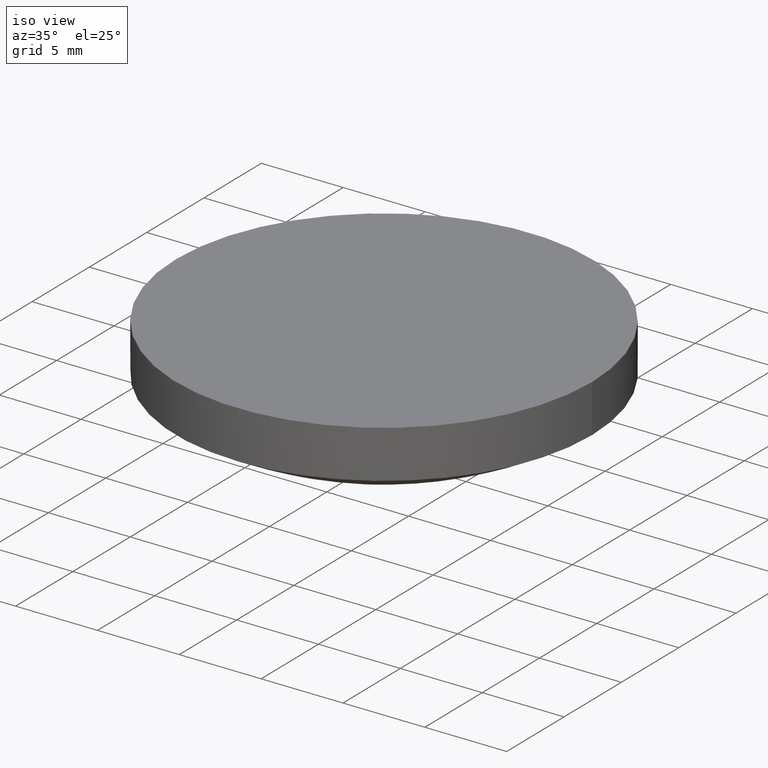
[diagram: clean part render]
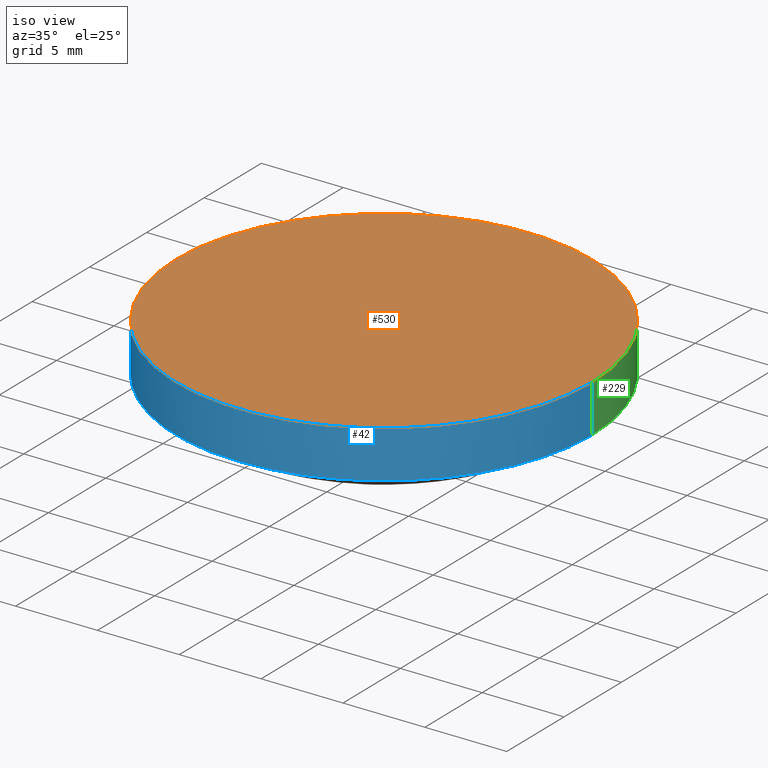
[diagram: same view with three faces highlighted in distinct colors, each labeled with its STEP entity id]
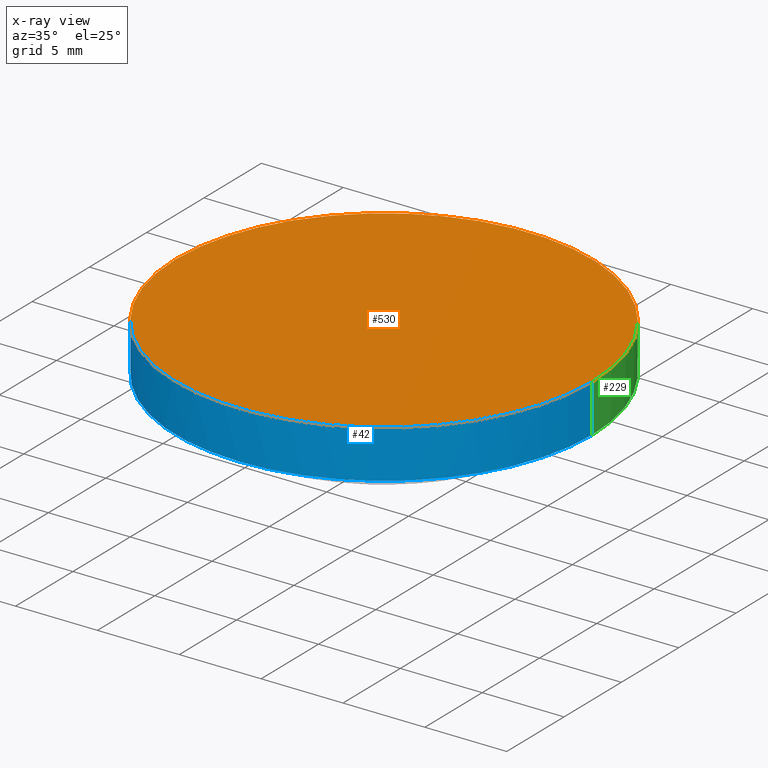
[diagram: x-ray of the same camera — body ghosted, the three highlighted faces saturated]
A machine part, iso view with three faces highlighted in distinct colors.
The next image is the same camera in x-ray (body ghosted, the three faces saturated) — at least one of them is partly hidden behind the body in this view.
Their STEP definitions:

[orange] entity #530 — the highlighted planar face has unit normal (0, 0, 1).
#2 = AXIS2_PLACEMENT_3D ( 'NONE', #307, #428, #301 ) ;
#24 = DIRECTION ( 'NONE',  ( 6.993530863780509846E-17, 4.890947394265059749E-33, -1.000000000000000000 ) ) ;
#32 = DIRECTION ( 'NONE',  ( 1.000000000000000000, 0.000000000000000000, 6.829619984160658046E-17 ) ) ;
#85 = AXIS2_PLACEMENT_3D ( 'NONE', #408, #24, #32 ) ;
#95 = DIRECTION ( 'NONE',  ( 1.000000000000000000, 0.000000000000000000, -0.000000000000000000 ) ) ;
#148 = VERTEX_POINT ( 'NONE', #156 ) ;
#156 = CARTESIAN_POINT ( 'NONE',  ( -12.69999999999999929, 6.671230152170134961E-16, 7.000000000000000000 ) ) ;
#215 = FACE_OUTER_BOUND ( 'NONE', #392, .T. ) ;
#216 = DIRECTION ( 'NONE',  ( 0.000000000000000000, 0.000000000000000000, 1.000000000000000000 ) ) ;
#218 = AXIS2_PLACEMENT_3D ( 'NONE', #261, #216, #95 ) ;
#220 = PLANE ( 'NONE',  #218 ) ;
#226 = CIRCLE ( 'NONE', #2, 12.69999999999999929 ) ;
#261 = CARTESIAN_POINT ( 'NONE',  ( 0.000000000000000000, 26.11199999999999832, 7.000000000000000000 ) ) ;
#264 = EDGE_CURVE ( 'NONE', #148, #528, #395, .T. ) ;
#301 = DIRECTION ( 'NONE',  ( 1.000000000000000000, 0.000000000000000000, 6.829619984160658046E-17 ) ) ;
#307 = CARTESIAN_POINT ( 'NONE',  ( 6.832987892309746087E-16, -8.881784197001250351E-16, 7.000000000000000888 ) ) ;
#350 = ORIENTED_EDGE ( 'NONE', *, *, #529, .F. ) ;
#391 = CARTESIAN_POINT ( 'NONE',  ( 12.69999999999999929, -8.881784197001250351E-16, 7.000000000000001776 ) ) ;
#392 = EDGE_LOOP ( 'NONE', ( #350, #431 ) ) ;
#395 = CIRCLE ( 'NONE', #85, 12.69999999999999929 ) ;
#408 = CARTESIAN_POINT ( 'NONE',  ( 6.832987892309746087E-16, -8.881784197001250351E-16, 7.000000000000000888 ) ) ;
#428 = DIRECTION ( 'NONE',  ( 6.993530863780509846E-17, 4.890947394265059749E-33, -1.000000000000000000 ) ) ;
#431 = ORIENTED_EDGE ( 'NONE', *, *, #264, .F. ) ;
#528 = VERTEX_POINT ( 'NONE', #391 ) ;
#529 = EDGE_CURVE ( 'NONE', #528, #148, #226, .T. ) ;
#530 = ADVANCED_FACE ( 'NONE', ( #215 ), #220, .T. ) ;

[blue] entity #42 — the highlighted cylindrical surface (partial cylindrical patch) has radius 12.7 mm, axis along (-0, -0, 1).
#2 = AXIS2_PLACEMENT_3D ( 'NONE', #307, #428, #301 ) ;
#12 = LINE ( 'NONE', #178, #349 ) ;
#13 = VERTEX_POINT ( 'NONE', #352 ) ;
#14 = ORIENTED_EDGE ( 'NONE', *, *, #214, .F. ) ;
#21 = VERTEX_POINT ( 'NONE', #272 ) ;
#28 = CARTESIAN_POINT ( 'NONE',  ( -1.555301434917141588E-15, -12.70000000000000462, 4.070440747888570243 ) ) ;
#42 = ADVANCED_FACE ( 'NONE', ( #358 ), #117, .T. ) ;
#94 = VERTEX_POINT ( 'NONE', #28 ) ;
#98 = ORIENTED_EDGE ( 'NONE', *, *, #484, .T. ) ;
#105 = CARTESIAN_POINT ( 'NONE',  ( 8.881784197001250351E-16, -8.881784197001250351E-16, 4.070440747888570243 ) ) ;
#117 = CYLINDRICAL_SURFACE ( 'NONE', #514, 12.69999999999999929 ) ;
#135 = CARTESIAN_POINT ( 'NONE',  ( 1.734723475976807094E-15, -1.345898117247522881E-15, 4.070440747888570243 ) ) ;
#139 = ORIENTED_EDGE ( 'NONE', *, *, #519, .F. ) ;
#140 = CARTESIAN_POINT ( 'NONE',  ( 12.70000000000000107, -8.881784197001250351E-16, 4.070440747888571131 ) ) ;
#148 = VERTEX_POINT ( 'NONE', #156 ) ;
#154 = AXIS2_PLACEMENT_3D ( 'NONE', #135, #341, #516 ) ;
#156 = CARTESIAN_POINT ( 'NONE',  ( -12.69999999999999929, 6.671230152170134961E-16, 7.000000000000000000 ) ) ;
#178 = CARTESIAN_POINT ( 'NONE',  ( -12.69999999999999751, 6.671230152170134961E-16, 4.070440747888569355 ) ) ;
#192 = DIRECTION ( 'NONE',  ( 1.000000000000000000, 0.000000000000000000, 6.829619984160658046E-17 ) ) ;
#214 = EDGE_CURVE ( 'NONE', #94, #13, #316, .T. ) ;
#226 = CIRCLE ( 'NONE', #2, 12.69999999999999929 ) ;
#245 = DIRECTION ( 'NONE',  ( -6.993530863780509846E-17, -4.890947394265059749E-33, 1.000000000000000000 ) ) ;
#272 = CARTESIAN_POINT ( 'NONE',  ( 12.70000000000000462, -8.881784197001248379E-16, 4.070440747888570243 ) ) ;
#275 = DIRECTION ( 'NONE',  ( -0.000000000000000000, -0.000000000000000000, -1.000000000000000000 ) ) ;
#285 = CARTESIAN_POINT ( 'NONE',  ( 1.734723475976807094E-15, -1.345898117247522881E-15, 4.070440747888570243 ) ) ;
#301 = DIRECTION ( 'NONE',  ( 1.000000000000000000, 0.000000000000000000, 6.829619984160658046E-17 ) ) ;
#307 = CARTESIAN_POINT ( 'NONE',  ( 6.832987892309746087E-16, -8.881784197001250351E-16, 7.000000000000000888 ) ) ;
#316 = CIRCLE ( 'NONE', #434, 12.70000000000000284 ) ;
#341 = DIRECTION ( 'NONE',  ( -0.000000000000000000, -0.000000000000000000, -1.000000000000000000 ) ) ;
#342 = VECTOR ( 'NONE', #517, 1000.000000000000000 ) ;
#346 = EDGE_LOOP ( 'NONE', ( #396, #14, #139, #98, #385 ) ) ;
#349 = VECTOR ( 'NONE', #475, 1000.000000000000000 ) ;
#352 = CARTESIAN_POINT ( 'NONE',  ( -12.70000000000000284, 6.671230152170136933E-16, 4.070440747888570243 ) ) ;
#358 = FACE_OUTER_BOUND ( 'NONE', #346, .T. ) ;
#385 = ORIENTED_EDGE ( 'NONE', *, *, #529, .T. ) ;
#388 = CIRCLE ( 'NONE', #154, 12.70000000000000284 ) ;
#391 = CARTESIAN_POINT ( 'NONE',  ( 12.69999999999999929, -8.881784197001250351E-16, 7.000000000000001776 ) ) ;
#396 = ORIENTED_EDGE ( 'NONE', *, *, #509, .F. ) ;
#400 = DIRECTION ( 'NONE',  ( -1.000000000000000000, 0.000000000000000000, 0.000000000000000000 ) ) ;
#428 = DIRECTION ( 'NONE',  ( 6.993530863780509846E-17, 4.890947394265059749E-33, -1.000000000000000000 ) ) ;
#434 = AXIS2_PLACEMENT_3D ( 'NONE', #285, #275, #400 ) ;
#475 = DIRECTION ( 'NONE',  ( -6.993530863780509846E-17, -4.890947394265059749E-33, 1.000000000000000000 ) ) ;
#484 = EDGE_CURVE ( 'NONE', #21, #528, #522, .T. ) ;
#509 = EDGE_CURVE ( 'NONE', #13, #148, #12, .T. ) ;
#514 = AXIS2_PLACEMENT_3D ( 'NONE', #105, #245, #192 ) ;
#516 = DIRECTION ( 'NONE',  ( -1.000000000000000000, 0.000000000000000000, 0.000000000000000000 ) ) ;
#517 = DIRECTION ( 'NONE',  ( -6.993530863780509846E-17, -4.890947394265059749E-33, 1.000000000000000000 ) ) ;
#519 = EDGE_CURVE ( 'NONE', #21, #94, #388, .T. ) ;
#522 = LINE ( 'NONE', #140, #342 ) ;
#528 = VERTEX_POINT ( 'NONE', #391 ) ;
#529 = EDGE_CURVE ( 'NONE', #528, #148, #226, .T. ) ;

[green] entity #229 — the highlighted cylindrical surface (partial cylindrical patch) has radius 12.7 mm, axis along (-0, -0, 1).
#12 = LINE ( 'NONE', #178, #349 ) ;
#13 = VERTEX_POINT ( 'NONE', #352 ) ;
#21 = VERTEX_POINT ( 'NONE', #272 ) ;
#24 = DIRECTION ( 'NONE',  ( 6.993530863780509846E-17, 4.890947394265059749E-33, -1.000000000000000000 ) ) ;
#32 = DIRECTION ( 'NONE',  ( 1.000000000000000000, 0.000000000000000000, 6.829619984160658046E-17 ) ) ;
#55 = ORIENTED_EDGE ( 'NONE', *, *, #509, .T. ) ;
#58 = EDGE_LOOP ( 'NONE', ( #520, #55, #438, #217, #61 ) ) ;
#61 = ORIENTED_EDGE ( 'NONE', *, *, #113, .F. ) ;
#65 = DIRECTION ( 'NONE',  ( -6.993530863780509846E-17, -4.890947394265059749E-33, 1.000000000000000000 ) ) ;
#71 = CYLINDRICAL_SURFACE ( 'NONE', #523, 12.69999999999999929 ) ;
#73 = EDGE_CURVE ( 'NONE', #13, #524, #372, .T. ) ;
#79 = CARTESIAN_POINT ( 'NONE',  ( 1.734723475976807094E-15, -1.345898117247522881E-15, 4.070440747888570243 ) ) ;
#85 = AXIS2_PLACEMENT_3D ( 'NONE', #408, #24, #32 ) ;
#113 = EDGE_CURVE ( 'NONE', #524, #21, #305, .T. ) ;
#137 = CARTESIAN_POINT ( 'NONE',  ( -3.851859888774471706E-31, 12.70000000000000284, 4.070440747888570243 ) ) ;
#140 = CARTESIAN_POINT ( 'NONE',  ( 12.70000000000000107, -8.881784197001250351E-16, 4.070440747888571131 ) ) ;
#148 = VERTEX_POINT ( 'NONE', #156 ) ;
#156 = CARTESIAN_POINT ( 'NONE',  ( -12.69999999999999929, 6.671230152170134961E-16, 7.000000000000000000 ) ) ;
#178 = CARTESIAN_POINT ( 'NONE',  ( -12.69999999999999751, 6.671230152170134961E-16, 4.070440747888569355 ) ) ;
#179 = AXIS2_PLACEMENT_3D ( 'NONE', #279, #447, #456 ) ;
#203 = CARTESIAN_POINT ( 'NONE',  ( 8.881784197001250351E-16, -8.881784197001250351E-16, 4.070440747888570243 ) ) ;
#217 = ORIENTED_EDGE ( 'NONE', *, *, #484, .F. ) ;
#229 = ADVANCED_FACE ( 'NONE', ( #234 ), #71, .T. ) ;
#234 = FACE_OUTER_BOUND ( 'NONE', #58, .T. ) ;
#237 = DIRECTION ( 'NONE',  ( 1.000000000000000000, 0.000000000000000000, 6.829619984160658046E-17 ) ) ;
#264 = EDGE_CURVE ( 'NONE', #148, #528, #395, .T. ) ;
#272 = CARTESIAN_POINT ( 'NONE',  ( 12.70000000000000462, -8.881784197001248379E-16, 4.070440747888570243 ) ) ;
#279 = CARTESIAN_POINT ( 'NONE',  ( 1.734723475976807094E-15, -1.345898117247522881E-15, 4.070440747888570243 ) ) ;
#305 = CIRCLE ( 'NONE', #485, 12.70000000000000284 ) ;
#319 = DIRECTION ( 'NONE',  ( -0.000000000000000000, -0.000000000000000000, -1.000000000000000000 ) ) ;
#342 = VECTOR ( 'NONE', #517, 1000.000000000000000 ) ;
#349 = VECTOR ( 'NONE', #475, 1000.000000000000000 ) ;
#352 = CARTESIAN_POINT ( 'NONE',  ( -12.70000000000000284, 6.671230152170136933E-16, 4.070440747888570243 ) ) ;
#372 = CIRCLE ( 'NONE', #179, 12.70000000000000284 ) ;
#391 = CARTESIAN_POINT ( 'NONE',  ( 12.69999999999999929, -8.881784197001250351E-16, 7.000000000000001776 ) ) ;
#395 = CIRCLE ( 'NONE', #85, 12.69999999999999929 ) ;
#404 = DIRECTION ( 'NONE',  ( -1.000000000000000000, 0.000000000000000000, 0.000000000000000000 ) ) ;
#408 = CARTESIAN_POINT ( 'NONE',  ( 6.832987892309746087E-16, -8.881784197001250351E-16, 7.000000000000000888 ) ) ;
#438 = ORIENTED_EDGE ( 'NONE', *, *, #264, .T. ) ;
#447 = DIRECTION ( 'NONE',  ( -0.000000000000000000, -0.000000000000000000, -1.000000000000000000 ) ) ;
#456 = DIRECTION ( 'NONE',  ( -1.000000000000000000, 0.000000000000000000, 0.000000000000000000 ) ) ;
#475 = DIRECTION ( 'NONE',  ( -6.993530863780509846E-17, -4.890947394265059749E-33, 1.000000000000000000 ) ) ;
#484 = EDGE_CURVE ( 'NONE', #21, #528, #522, .T. ) ;
#485 = AXIS2_PLACEMENT_3D ( 'NONE', #79, #319, #404 ) ;
#509 = EDGE_CURVE ( 'NONE', #13, #148, #12, .T. ) ;
#517 = DIRECTION ( 'NONE',  ( -6.993530863780509846E-17, -4.890947394265059749E-33, 1.000000000000000000 ) ) ;
#520 = ORIENTED_EDGE ( 'NONE', *, *, #73, .F. ) ;
#522 = LINE ( 'NONE', #140, #342 ) ;
#523 = AXIS2_PLACEMENT_3D ( 'NONE', #203, #65, #237 ) ;
#524 = VERTEX_POINT ( 'NONE', #137 ) ;
#528 = VERTEX_POINT ( 'NONE', #391 ) ;